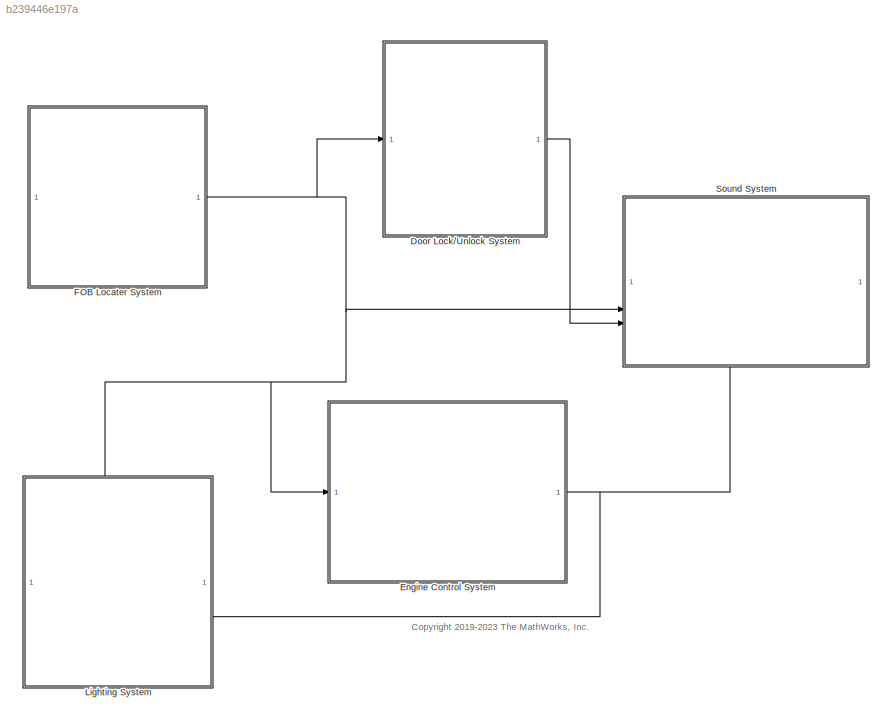
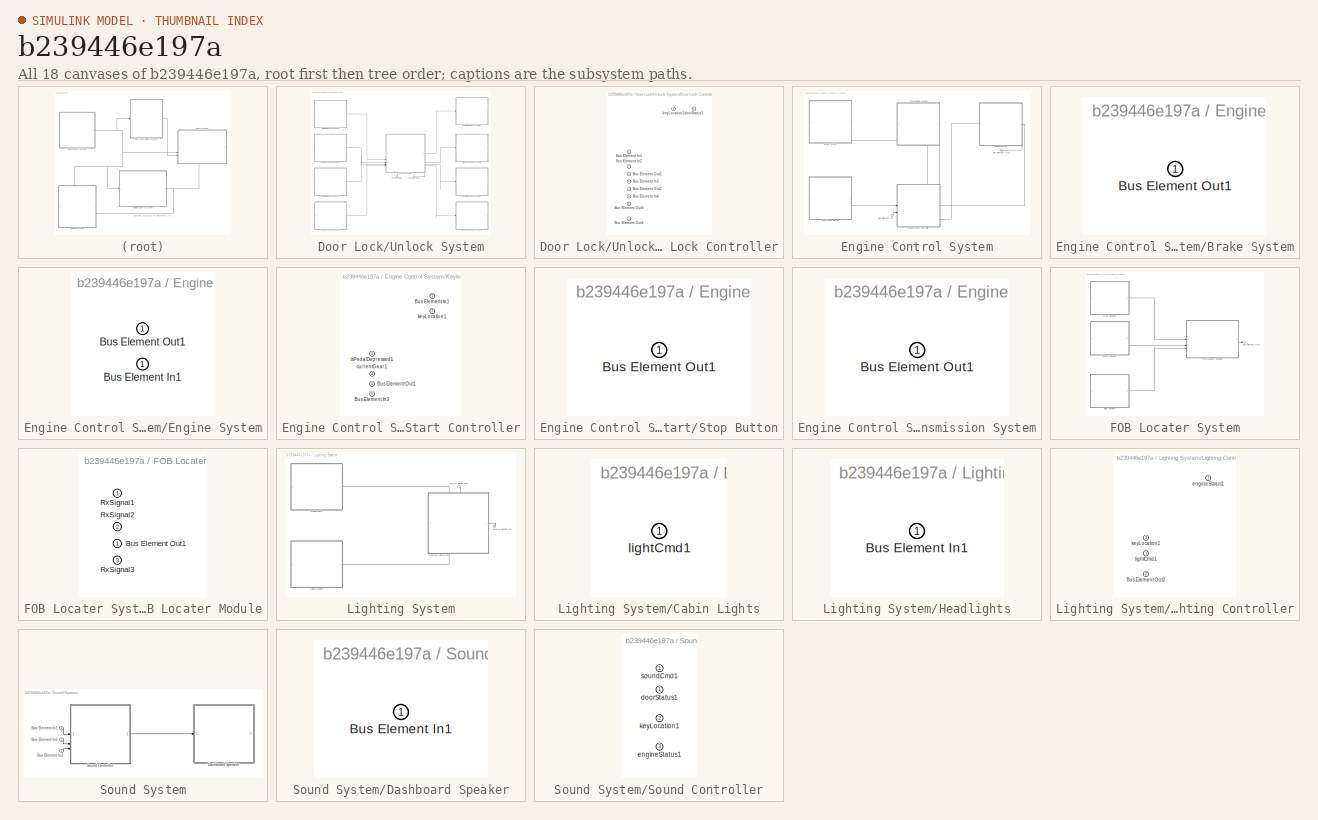
[diagram: thumbnail index - all 18 canvases of the model, root first then tree order]
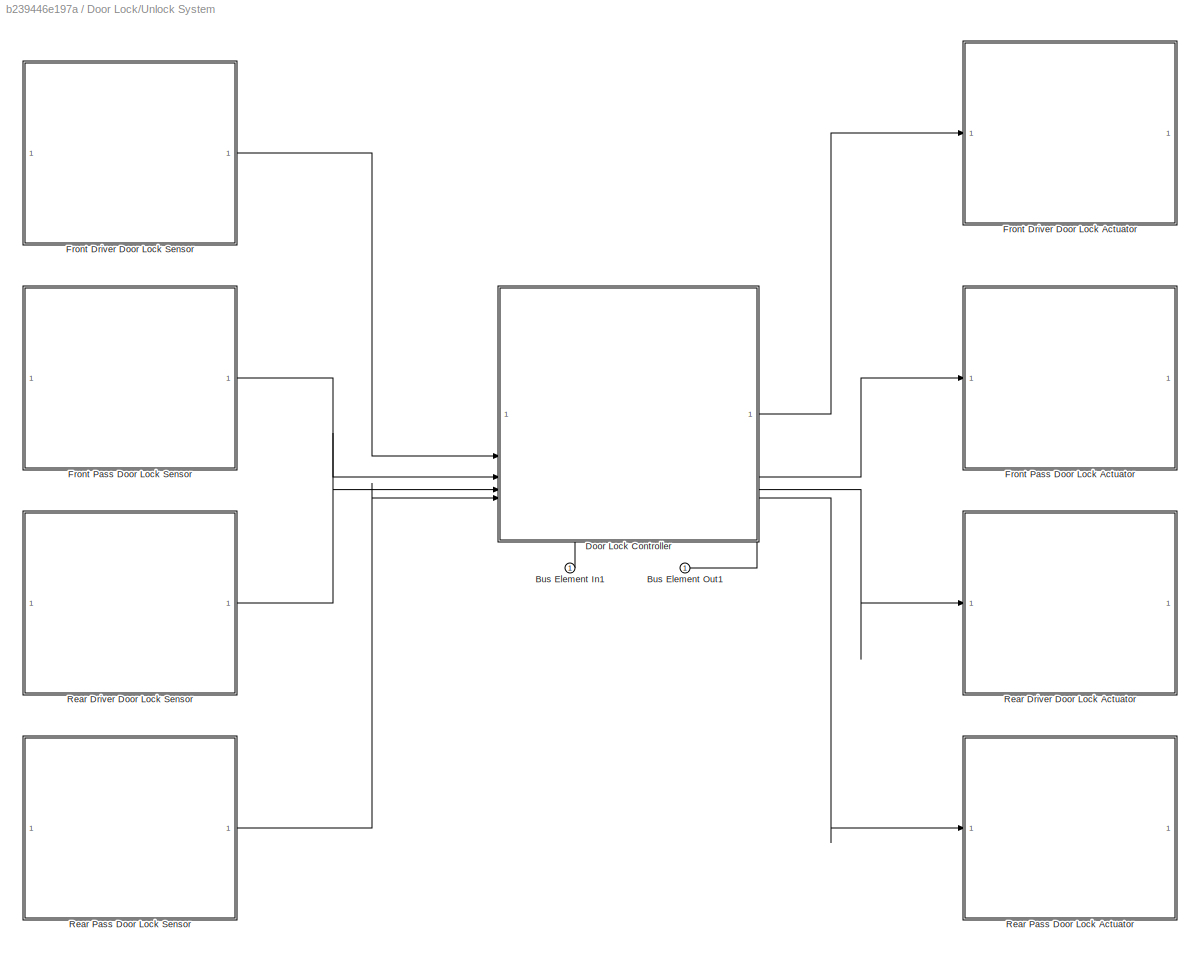
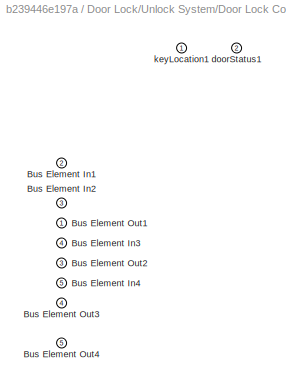
MODEL slx_b239446e197a
KIND model
CONFIG AbsTol = auto
CONFIG EnableMultiTasking = off
CONFIG FixedStep = auto
CONFIG MaxStep = auto
CONFIG MinStep = auto
CONFIG RelTol = 1e-3
CONFIG SampleTimeConstraint = Unconstrained
CONFIG SolverName = VariableStepAuto
CONFIG StartTime = 0.0
CONFIG StopTime = 10.0
BLOCK [SubSystem] Door Lock//Unlock System
  PortSchema = {"entries":[{"content":{"headerSize":26,"margin":15,"minimumSpacing":25,"sides":[{"content":{"connectorIds":["In1"]},"type":"ConnectorPlacement.EquallySpacedRectSide","uuid":"159ee682-9fed-4fbb-9d94-5dba31d2910e"},{"content":{"connectorIds":["Out1"],"side":"RIGHT"},"type":"ConnectorPlacement.EquallySpacedRectSide","uuid":"29b28cc0-b170-4369-a93a-656923dab01a"},{"content":{"connectorIds":[],"side":...<+290ch>
BLOCK [Inport] Door Lock//Unlock System/Bus Element In1
BLOCK [Outport] Door Lock//Unlock System/Bus Element Out1
BLOCK [SubSystem] Door Lock//Unlock System/Door Lock Controller
  PortSchema = {"entries":[{"content":{"headerSize":26,"margin":15,"minimumSpacing":25,"sides":[{"content":{"connectorIds":["In2","In3","In4","In5"]},"type":"ConnectorPlacement.EquallySpacedRectSide","uuid":"a0f82e88-5275-4bb9-87fe-a49bf19782cf"},{"content":{"connectorIds":["Out1","Out3","Out4","Out5"],"side":"RIGHT"},"type":"ConnectorPlacement.EquallySpacedRectSide","uuid":"4b3945c4-3891-41a7-b741-bb467a4ccb5a"...<+485ch>
BLOCK [Inport] Door Lock//Unlock System/Door Lock Controller/Bus Element In1
  Port = 2
BLOCK [Inport] Door Lock//Unlock System/Door Lock Controller/Bus Element In2
  Port = 3
BLOCK [Inport] Door Lock//Unlock System/Door Lock Controller/Bus Element In3
  Port = 4
BLOCK [Inport] Door Lock//Unlock System/Door Lock Controller/Bus Element In4
  Port = 5
BLOCK [Outport] Door Lock//Unlock System/Door Lock Controller/Bus Element Out1
BLOCK [Outport] Door Lock//Unlock System/Door Lock Controller/Bus Element Out2
  Port = 3
BLOCK [Outport] Door Lock//Unlock System/Door Lock Controller/Bus Element Out3
  Port = 4
BLOCK [Outport] Door Lock//Unlock System/Door Lock Controller/Bus Element Out4
  Port = 5
BLOCK [Outport] Door Lock//Unlock System/Door Lock Controller/doorStatus1
  Port = 2
BLOCK [Inport] Door Lock//Unlock System/Door Lock Controller/keyLocation1
BLOCK [ModelReference] Door Lock//Unlock System/Front Driver Door Lock Actuator
  ModelNameDialog = DoorLockActuator
  ModelReferenceVersion = 7.9
  PortSchema = {"entries":[{"content":{"headerSize":38,"margin":15,"minimumSpacing":25,"sides":[{"content":{"connectorIds":["In1"]},"type":"ConnectorPlacement.EquallySpacedRectSide","uuid":"a0f82e88-5275-4bb9-87fe-a49bf19782cf"},{"content":{"connectorIds":[],"side":"RIGHT"},"type":"ConnectorPlacement.EquallySpacedRectSide","uuid":"4b3945c4-3891-41a7-b741-bb467a4ccb5a"},{"content":{"connectorIds":[],"side":"TOP"}...<+284ch>  <repeated x4 — deduplicated; at blocks: Front Driver Door Lock Actuator, Front Pass Door Lock Actuator, Rear Driver Door Lock Actuator, Rear Pass Door Lock Actuator>
BLOCK [ModelReference] Door Lock//Unlock System/Front Driver Door Lock Sensor
  ModelNameDialog = DoorLockSensor
  ModelReferenceVersion = 7.9
  PortSchema = {"entries":[{"content":{"headerSize":38,"margin":15,"minimumSpacing":25,"sides":[{"content":{"connectorIds":[]},"type":"ConnectorPlacement.EquallySpacedRectSide","uuid":"a0f82e88-5275-4bb9-87fe-a49bf19782cf"},{"content":{"connectorIds":["Out1"],"side":"RIGHT"},"type":"ConnectorPlacement.EquallySpacedRectSide","uuid":"4b3945c4-3891-41a7-b741-bb467a4ccb5a"},{"content":{"connectorIds":[],"side":"TOP"...<+285ch>  <repeated x7 — deduplicated; at blocks: Front Driver Door Lock Sensor, Front Pass Door Lock Sensor, Rear Driver Door Lock Sensor, Rear Pass Door Lock Sensor, Center Receiver, Front Receiver, Rear Receiver>
BLOCK [ModelReference] Door Lock//Unlock System/Front Pass Door Lock Actuator
  ModelNameDialog = DoorLockActuator
  ModelReferenceVersion = 7.9
BLOCK [ModelReference] Door Lock//Unlock System/Front Pass Door Lock Sensor
  ModelNameDialog = DoorLockSensor
  ModelReferenceVersion = 7.9
BLOCK [ModelReference] Door Lock//Unlock System/Rear Driver Door Lock Actuator
  ModelNameDialog = DoorLockActuator
  ModelReferenceVersion = 7.9
BLOCK [ModelReference] Door Lock//Unlock System/Rear Driver Door Lock Sensor
  ModelNameDialog = DoorLockSensor
  ModelReferenceVersion = 7.9
BLOCK [ModelReference] Door Lock//Unlock System/Rear Pass Door Lock Actuator
  ModelNameDialog = DoorLockActuator
  ModelReferenceVersion = 7.9
BLOCK [ModelReference] Door Lock//Unlock System/Rear Pass Door Lock Sensor
  ModelNameDialog = DoorLockSensor
  ModelReferenceVersion = 7.9
BLOCK [SubSystem] Engine Control System
  PortSchema = {"entries":[{"content":{"headerSize":26,"margin":15,"minimumSpacing":25,"sides":[{"content":{"connectorIds":["In1"]},"type":"ConnectorPlacement.EquallySpacedRectSide","uuid":"159ee682-9fed-4fbb-9d94-5dba31d2910e"},{"content":{"connectorIds":["Out1"],"side":"RIGHT"},"type":"ConnectorPlacement.EquallySpacedRectSide","uuid":"29b28cc0-b170-4369-a93a-656923dab01a"},{"content":{"connectorIds":[],"side":...<+290ch>
BLOCK [SubSystem] Engine Control System/Brake System
  PortSchema = {"entries":[{"content":{"headerSize":26,"margin":15,"minimumSpacing":25,"sides":[{"content":{"connectorIds":[]},"type":"ConnectorPlacement.EquallySpacedRectSide","uuid":"a0f82e88-5275-4bb9-87fe-a49bf19782cf"},{"content":{"connectorIds":[],"side":"RIGHT"},"type":"ConnectorPlacement.EquallySpacedRectSide","uuid":"4b3945c4-3891-41a7-b741-bb467a4ccb5a"},{"content":{"connectorIds":[],"side":"TOP"},"typ...<+429ch>
BLOCK [Outport] Engine Control System/Brake System/Bus Element Out1
BLOCK [Inport] Engine Control System/Bus Element In1
BLOCK [Outport] Engine Control System/Bus Element Out1
BLOCK [SubSystem] Engine Control System/Engine System
  PortSchema = {"entries":[{"content":{"headerSize":26,"margin":15,"minimumSpacing":25,"sides":[{"content":{"connectorIds":[]},"type":"ConnectorPlacement.EquallySpacedRectSide","uuid":"a0f82e88-5275-4bb9-87fe-a49bf19782cf"},{"content":{"connectorIds":["In1"],"side":"RIGHT"},"type":"ConnectorPlacement.EquallySpacedRectSide","uuid":"4b3945c4-3891-41a7-b741-bb467a4ccb5a"},{"content":{"connectorIds":[],"side":"TOP"}...<+434ch>
BLOCK [Inport] Engine Control System/Engine System/Bus Element In1
BLOCK [Outport] Engine Control System/Engine System/Bus Element Out1
BLOCK [SubSystem] Engine Control System/Keyless Start Controller
  PortSchema = {"entries":[{"content":{"headerSize":26,"margin":15,"minimumSpacing":25,"sides":[{"content":{"connectorIds":["In1","In2"]},"type":"ConnectorPlacement.EquallySpacedRectSide","uuid":"a0f82e88-5275-4bb9-87fe-a49bf19782cf"},{"content":{"connectorIds":["Out1"],"side":"RIGHT"},"type":"ConnectorPlacement.EquallySpacedRectSide","uuid":"4b3945c4-3891-41a7-b741-bb467a4ccb5a"},{"content":{"connectorIds":["In...<+313ch>
BLOCK [Inport] Engine Control System/Keyless Start Controller/Bus Element In1
BLOCK [Inport] Engine Control System/Keyless Start Controller/Bus Element In3
  Port = 5
BLOCK [Outport] Engine Control System/Keyless Start Controller/Bus Element Out1
BLOCK [Inport] Engine Control System/Keyless Start Controller/currentGear1
  Port = 4
BLOCK [Inport] Engine Control System/Keyless Start Controller/isPedalDepressed1
  Port = 3
BLOCK [Inport] Engine Control System/Keyless Start Controller/keyLocation1
  Port = 2
BLOCK [SubSystem] Engine Control System/Start//Stop Button
  PortSchema = {"entries":[{"content":{"headerSize":26,"margin":15,"minimumSpacing":25,"sides":[{"content":{"connectorIds":[]},"type":"ConnectorPlacement.EquallySpacedRectSide","uuid":"a0f82e88-5275-4bb9-87fe-a49bf19782cf"},{"content":{"connectorIds":["Out1"],"side":"RIGHT"},"type":"ConnectorPlacement.EquallySpacedRectSide","uuid":"4b3945c4-3891-41a7-b741-bb467a4ccb5a"},{"content":{"connectorIds":[],"side":"TOP"...<+285ch>
BLOCK [Outport] Engine Control System/Start//Stop Button/Bus Element Out1
BLOCK [SubSystem] Engine Control System/Transmission System
  PortSchema = {"entries":[{"content":{"headerSize":26,"margin":15,"minimumSpacing":25,"sides":[{"content":{"connectorIds":[]},"type":"ConnectorPlacement.EquallySpacedRectSide","uuid":"a0f82e88-5275-4bb9-87fe-a49bf19782cf"},{"content":{"connectorIds":[],"side":"RIGHT"},"type":"ConnectorPlacement.EquallySpacedRectSide","uuid":"4b3945c4-3891-41a7-b741-bb467a4ccb5a"},{"content":{"connectorIds":[],"side":"TOP"},"typ...<+429ch>
BLOCK [Outport] Engine Control System/Transmission System/Bus Element Out1
BLOCK [SubSystem] FOB Locater System
  PortSchema = {"entries":[{"content":{"headerSize":26,"margin":15,"minimumSpacing":25,"sides":[{"content":{"connectorIds":[]},"type":"ConnectorPlacement.EquallySpacedRectSide","uuid":"159ee682-9fed-4fbb-9d94-5dba31d2910e"},{"content":{"connectorIds":["Out1"],"side":"RIGHT"},"type":"ConnectorPlacement.EquallySpacedRectSide","uuid":"29b28cc0-b170-4369-a93a-656923dab01a"},{"content":{"connectorIds":[],"side":"TOP"...<+285ch>
BLOCK [Outport] FOB Locater System/Bus Element Out1
BLOCK [ModelReference] FOB Locater System/Center Receiver
  ModelNameDialog = FOBReceiver
  ModelReferenceVersion = 7.9
BLOCK [SubSystem] FOB Locater System/FOB Locater Module
  PortSchema = {"entries":[{"content":{"headerSize":26,"margin":15,"minimumSpacing":25,"sides":[{"content":{"connectorIds":["In1","In2","In3"]},"type":"ConnectorPlacement.EquallySpacedRectSide","uuid":"a0f82e88-5275-4bb9-87fe-a49bf19782cf"},{"content":{"connectorIds":["Out1"],"side":"RIGHT"},"type":"ConnectorPlacement.EquallySpacedRectSide","uuid":"4b3945c4-3891-41a7-b741-bb467a4ccb5a"},{"content":{"connectorIds...<+302ch>
BLOCK [Outport] FOB Locater System/FOB Locater Module/Bus Element Out1
BLOCK [Inport] FOB Locater System/FOB Locater Module/RxSignal1
BLOCK [Inport] FOB Locater System/FOB Locater Module/RxSignal2
  Port = 2
BLOCK [Inport] FOB Locater System/FOB Locater Module/RxSignal3
  Port = 3
BLOCK [ModelReference] FOB Locater System/Front Receiver
  ModelNameDialog = FOBReceiver
  ModelReferenceVersion = 7.9
BLOCK [ModelReference] FOB Locater System/Rear Receiver
  ModelNameDialog = FOBReceiver
  ModelReferenceVersion = 7.9
BLOCK [SubSystem] Lighting System
  PortSchema = {"entries":[{"content":{"headerSize":26,"margin":15,"minimumSpacing":25,"sides":[{"content":{"connectorIds":[]},"type":"ConnectorPlacement.EquallySpacedRectSide","uuid":"159ee682-9fed-4fbb-9d94-5dba31d2910e"},{"content":{"connectorIds":["In2"],"side":"RIGHT"},"type":"ConnectorPlacement.EquallySpacedRectSide","uuid":"29b28cc0-b170-4369-a93a-656923dab01a"},{"content":{"connectorIds":["In1"],"side":"...<+289ch>
BLOCK [Inport] Lighting System/Bus Element In1
  Port = 2
BLOCK [Inport] Lighting System/Bus Element In2
BLOCK [SubSystem] Lighting System/Cabin Lights
  PortSchema = {"entries":[{"content":{"headerSize":26,"margin":15,"minimumSpacing":25,"sides":[{"content":{"connectorIds":[]},"type":"ConnectorPlacement.EquallySpacedRectSide","uuid":"a0f82e88-5275-4bb9-87fe-a49bf19782cf"},{"content":{"connectorIds":["In1"],"side":"RIGHT"},"type":"ConnectorPlacement.EquallySpacedRectSide","uuid":"4b3945c4-3891-41a7-b741-bb467a4ccb5a"},{"content":{"connectorIds":[],"side":"TOP"}...<+284ch>
BLOCK [Inport] Lighting System/Cabin Lights/lightCmd1
BLOCK [SubSystem] Lighting System/Headlights
  PortSchema = {"entries":[{"content":{"headerSize":26,"margin":15,"minimumSpacing":25,"sides":[{"content":{"connectorIds":[]},"type":"ConnectorPlacement.EquallySpacedRectSide","uuid":"a0f82e88-5275-4bb9-87fe-a49bf19782cf"},{"content":{"connectorIds":["In1"],"side":"RIGHT"},"type":"ConnectorPlacement.EquallySpacedRectSide","uuid":"4b3945c4-3891-41a7-b741-bb467a4ccb5a"},{"content":{"connectorIds":[],"side":"TOP"}...<+284ch>
BLOCK [Inport] Lighting System/Headlights/Bus Element In1
BLOCK [SubSystem] Lighting System/Lighting Controller
  PortSchema = {"entries":[{"content":{"headerSize":26,"margin":15,"minimumSpacing":25,"sides":[{"content":{"connectorIds":["Out1","Out2"]},"type":"ConnectorPlacement.EquallySpacedRectSide","uuid":"a0f82e88-5275-4bb9-87fe-a49bf19782cf"},{"content":{"connectorIds":["In1"],"side":"RIGHT"},"type":"ConnectorPlacement.EquallySpacedRectSide","uuid":"4b3945c4-3891-41a7-b741-bb467a4ccb5a"},{"content":{"connectorIds":["I...<+302ch>
BLOCK [Outport] Lighting System/Lighting Controller/Bus Element Out2
  Port = 2
BLOCK [Inport] Lighting System/Lighting Controller/engineStatus1
BLOCK [Inport] Lighting System/Lighting Controller/keyLocation1
  Port = 2
BLOCK [Outport] Lighting System/Lighting Controller/lightCmd1
BLOCK [SubSystem] Sound System
  PortSchema = {"entries":[{"content":{"headerSize":26,"margin":15,"minimumSpacing":25,"sides":[{"content":{"connectorIds":["In3","In2"]},"type":"ConnectorPlacement.EquallySpacedRectSide","uuid":"159ee682-9fed-4fbb-9d94-5dba31d2910e"},{"content":{"connectorIds":[],"side":"RIGHT"},"type":"ConnectorPlacement.EquallySpacedRectSide","uuid":"29b28cc0-b170-4369-a93a-656923dab01a"},{"content":{"connectorIds":[],"side":...<+439ch>
BLOCK [Inport] Sound System/Bus Element In1
  Port = 3
BLOCK [Inport] Sound System/Bus Element In2
BLOCK [Inport] Sound System/Bus Element In3
  Port = 2
BLOCK [SubSystem] Sound System/Dashboard Speaker
  PortSchema = {"entries":[{"content":{"headerSize":26,"margin":15,"minimumSpacing":25,"sides":[{"content":{"connectorIds":["In1"]},"type":"ConnectorPlacement.EquallySpacedRectSide","uuid":"a0f82e88-5275-4bb9-87fe-a49bf19782cf"},{"content":{"connectorIds":[],"side":"RIGHT"},"type":"ConnectorPlacement.EquallySpacedRectSide","uuid":"4b3945c4-3891-41a7-b741-bb467a4ccb5a"},{"content":{"connectorIds":[],"side":"TOP"}...<+284ch>
BLOCK [Inport] Sound System/Dashboard Speaker/Bus Element In1
BLOCK [SubSystem] Sound System/Sound Controller
  PortSchema = {"entries":[{"content":{"headerSize":26,"margin":15,"minimumSpacing":25,"sides":[{"content":{"connectorIds":["In1","In2","In3"]},"type":"ConnectorPlacement.EquallySpacedRectSide","uuid":"a0f82e88-5275-4bb9-87fe-a49bf19782cf"},{"content":{"connectorIds":["Out1"],"side":"RIGHT"},"type":"ConnectorPlacement.EquallySpacedRectSide","uuid":"4b3945c4-3891-41a7-b741-bb467a4ccb5a"},{"content":{"connectorIds...<+302ch>
BLOCK [Inport] Sound System/Sound Controller/doorStatus1
BLOCK [Inport] Sound System/Sound Controller/engineStatus1
  Port = 3
BLOCK [Inport] Sound System/Sound Controller/keyLocation1
  Port = 2
BLOCK [Outport] Sound System/Sound Controller/soundCmd1
ANNOTATION (root): <copyright redacted>
LINE Door Lock//Unlock System/Bus Element In1:1 -> Door Lock//Unlock System/Door Lock Controller:1
LINE Door Lock//Unlock System/Door Lock Controller:1 -> Door Lock//Unlock System/Front Driver Door Lock Actuator:1
LINE Door Lock//Unlock System/Door Lock Controller:2 -> Door Lock//Unlock System/Bus Element Out1:1
LINE Door Lock//Unlock System/Door Lock Controller:3 -> Door Lock//Unlock System/Front Pass Door Lock Actuator:1
LINE Door Lock//Unlock System/Door Lock Controller:4 -> Door Lock//Unlock System/Rear Driver Door Lock Actuator:1
LINE Door Lock//Unlock System/Door Lock Controller:5 -> Door Lock//Unlock System/Rear Pass Door Lock Actuator:1
LINE Door Lock//Unlock System/Front Driver Door Lock Sensor:1 -> Door Lock//Unlock System/Door Lock Controller:2
LINE Door Lock//Unlock System/Front Pass Door Lock Sensor:1 -> Door Lock//Unlock System/Door Lock Controller:3
LINE Door Lock//Unlock System/Rear Driver Door Lock Sensor:1 -> Door Lock//Unlock System/Door Lock Controller:4
LINE Door Lock//Unlock System/Rear Pass Door Lock Sensor:1 -> Door Lock//Unlock System/Door Lock Controller:5
LINE Door Lock//Unlock System:1 -> Sound System:3
LINE Engine Control System/Brake System:1 -> Engine Control System/Keyless Start Controller:3
LINE Engine Control System/Bus Element In1:1 -> Engine Control System/Keyless Start Controller:2
NET Engine Control System/Engine System:1 -> Engine Control System/Bus Element Out1:1, Engine Control System/Keyless Start Controller:5
LINE Engine Control System/Keyless Start Controller:1 -> Engine Control System/Engine System:1
LINE Engine Control System/Start//Stop Button:1 -> Engine Control System/Keyless Start Controller:1
LINE Engine Control System/Transmission System:1 -> Engine Control System/Keyless Start Controller:4
NET Engine Control System:1 -> Lighting System:2, Sound System:1
LINE FOB Locater System/Center Receiver:1 -> FOB Locater System/FOB Locater Module:2
LINE FOB Locater System/FOB Locater Module:1 -> FOB Locater System/Bus Element Out1:1
LINE FOB Locater System/Front Receiver:1 -> FOB Locater System/FOB Locater Module:1
LINE FOB Locater System/Rear Receiver:1 -> FOB Locater System/FOB Locater Module:3
NET FOB Locater System:1 -> Door Lock//Unlock System:1, Engine Control System:1, Lighting System:1, Sound System:2
LINE Lighting System/Bus Element In1:1 -> Lighting System/Lighting Controller:1
LINE Lighting System/Bus Element In2:1 -> Lighting System/Lighting Controller:2
LINE Lighting System/Lighting Controller:1 -> Lighting System/Headlights:1
LINE Lighting System/Lighting Controller:2 -> Lighting System/Cabin Lights:1
LINE Sound System/Bus Element In1:1 -> Sound System/Sound Controller:1
LINE Sound System/Bus Element In2:1 -> Sound System/Sound Controller:3
LINE Sound System/Bus Element In3:1 -> Sound System/Sound Controller:2
LINE Sound System/Sound Controller:1 -> Sound System/Dashboard Speaker:1
note: NET lines group one-source signal fan-out (src -> all destinations, sorted); 1:1 wires keep LINE
